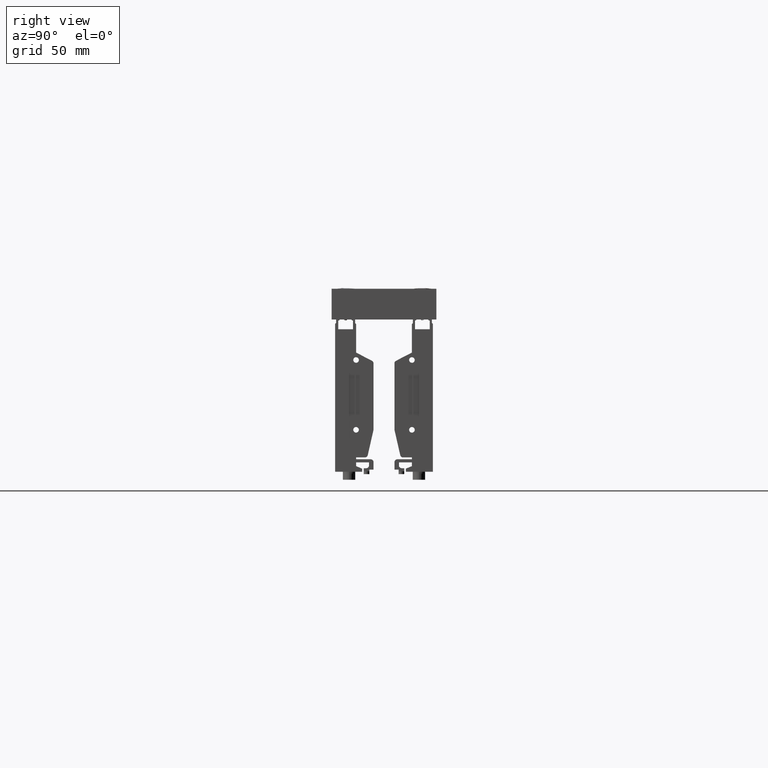
[diagram: clean part render]
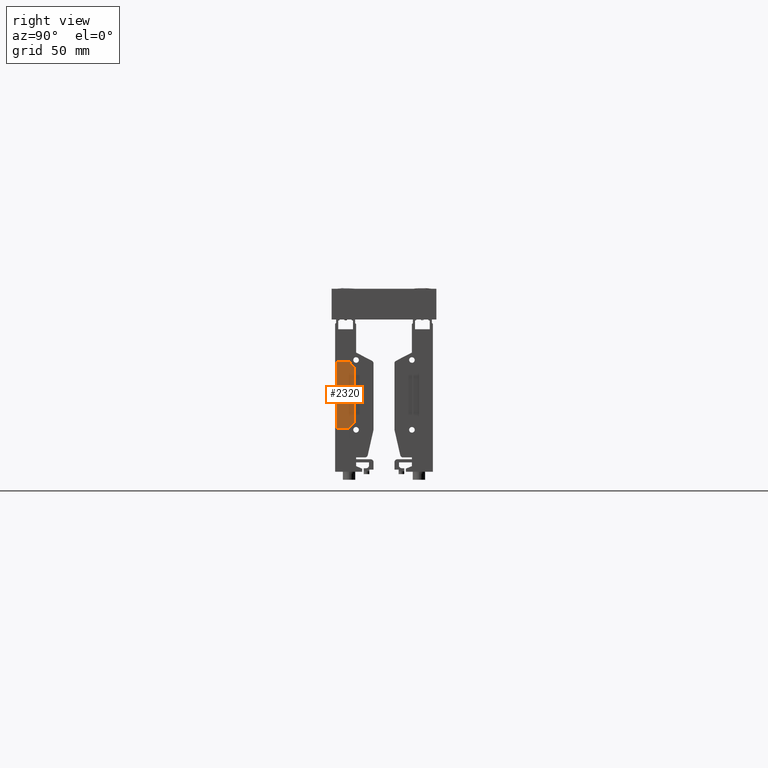
[diagram: same view with one face highlighted and labeled with its STEP entity id]
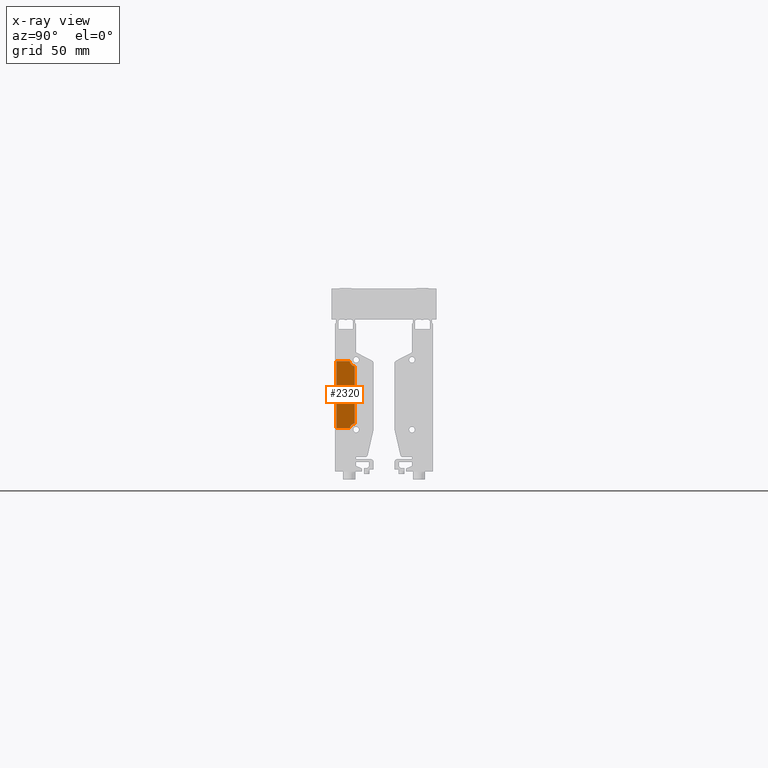
[diagram: x-ray of the same camera — body ghosted, the highlighted face saturated]
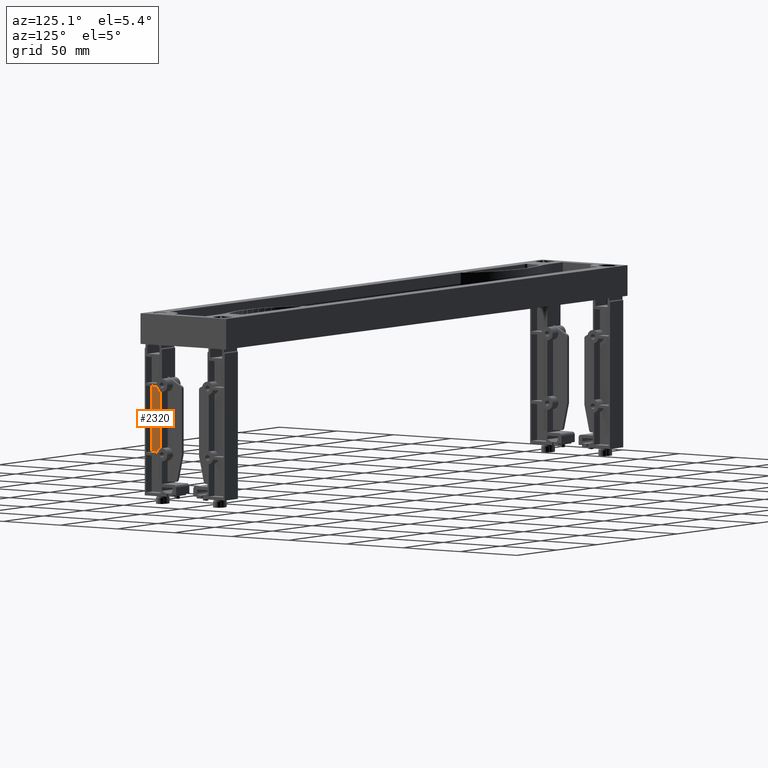
[diagram: same view with one face highlighted and labeled with its STEP entity id]
A machine part, right view. The second image highlights one B-rep face of the part: STEP entity #2320.
The next image is the same camera in x-ray: the body ghosted, the highlighted face saturated — about 0% of this face is hidden behind the body in this view.
A second angle (auxiliary view) of the same face is appended — the face is thin or edge-on in the first view.
In plain terms, the highlighted planar face has unit normal (-1, 0, 0).
Its self-contained STEP definition (entity closure, byte-faithful):
#2320=ADVANCED_FACE('',(#4828),#4829,.F.);
#4828=FACE_OUTER_BOUND('',#7573,.T.);
#4829=PLANE('',#7574);
#7573=EDGE_LOOP('',(#14102,#14103,#14104,#14105,#14106,#14107));
#7574=AXIS2_PLACEMENT_3D('',#14108,#14109,#14110);
#14102=ORIENTED_EDGE('',*,*,#18808,.T.);
#14103=ORIENTED_EDGE('',*,*,#19020,.F.);
#14104=ORIENTED_EDGE('',*,*,#18885,.T.);
#14105=ORIENTED_EDGE('',*,*,#19018,.F.);
#14106=ORIENTED_EDGE('',*,*,#19015,.F.);
#14107=ORIENTED_EDGE('',*,*,#18828,.F.);
#14108=CARTESIAN_POINT('',(491.1,10.0,60.8));
#14109=DIRECTION('',(-1.0,0.0,0.0));
#14110=DIRECTION('',(0.0,1.0,0.0));
#18808=EDGE_CURVE('',#23089,#23086,#23090,.T.);
#18828=EDGE_CURVE('',#23089,#23120,#23121,.T.);
#18885=EDGE_CURVE('',#23212,#23209,#23213,.T.);
#19015=EDGE_CURVE('',#23120,#23419,#23420,.T.);
#19018=EDGE_CURVE('',#23419,#23209,#23423,.T.);
#19020=EDGE_CURVE('',#23212,#23086,#23425,.T.);
#23086=VERTEX_POINT('',#29021);
#23089=VERTEX_POINT('',#29025);
#23090=CIRCLE('',#29026,4.75);
#23120=VERTEX_POINT('',#29067);
#23121=LINE('',#29068,#29069);
#23209=VERTEX_POINT('',#29188);
#23212=VERTEX_POINT('',#29192);
#23213=CIRCLE('',#29193,4.75);
#23419=VERTEX_POINT('',#29488);
#23420=LINE('',#29489,#29490);
#23423=LINE('',#29494,#29495);
#23425=LINE('',#29497,#29498);
#29021=CARTESIAN_POINT('',(491.1,16.4,40.4208765402248));
#29025=CARTESIAN_POINT('',(491.1,12.8564560947483,36.8));
#29026=AXIS2_PLACEMENT_3D('',#34162,#34163,#34164);
#29067=CARTESIAN_POINT('',(491.1,3.6,36.8));
#29068=CARTESIAN_POINT('',(491.1,10.0,36.8));
#29069=VECTOR('',#34185,1.0);
#29188=CARTESIAN_POINT('',(491.1,12.8564560947483,84.8));
#29192=CARTESIAN_POINT('',(491.1,16.4,81.1791234597752));
#29193=AXIS2_PLACEMENT_3D('',#34254,#34255,#34256);
#29488=CARTESIAN_POINT('',(491.1,3.6,84.8));
#29489=CARTESIAN_POINT('',(491.1,3.6,60.8));
#29490=VECTOR('',#34391,1.0);
#29494=CARTESIAN_POINT('',(491.1,10.0,84.8));
#29495=VECTOR('',#34393,1.0);
#29497=CARTESIAN_POINT('',(491.1,16.4,60.8));
#29498=VECTOR('',#34394,1.0);
#34162=CARTESIAN_POINT('',(491.1,17.5,35.8));
#34163=DIRECTION('',(-1.0,0.0,0.0));
#34164=DIRECTION('',(0.0,0.0,-1.0));
#34185=DIRECTION('',(0.0,-1.0,0.0));
#34254=CARTESIAN_POINT('',(491.1,17.5,85.8));
#34255=DIRECTION('',(-1.0,0.0,0.0));
#34256=DIRECTION('',(0.0,0.0,-1.0));
#34391=DIRECTION('',(0.0,0.0,1.0));
#34393=DIRECTION('',(0.0,1.0,0.0));
#34394=DIRECTION('',(0.0,0.0,-1.0));